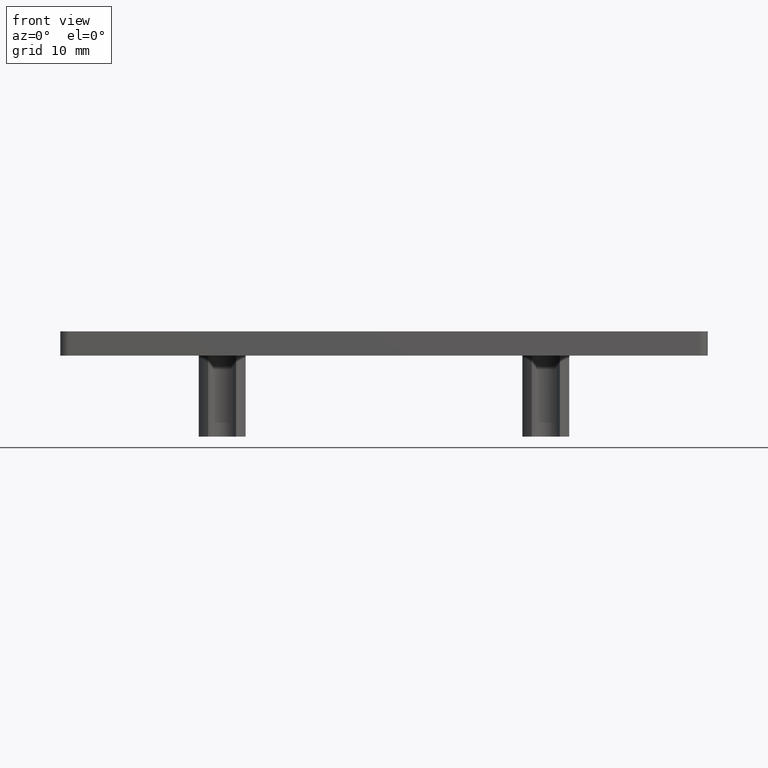
[diagram: clean part render]
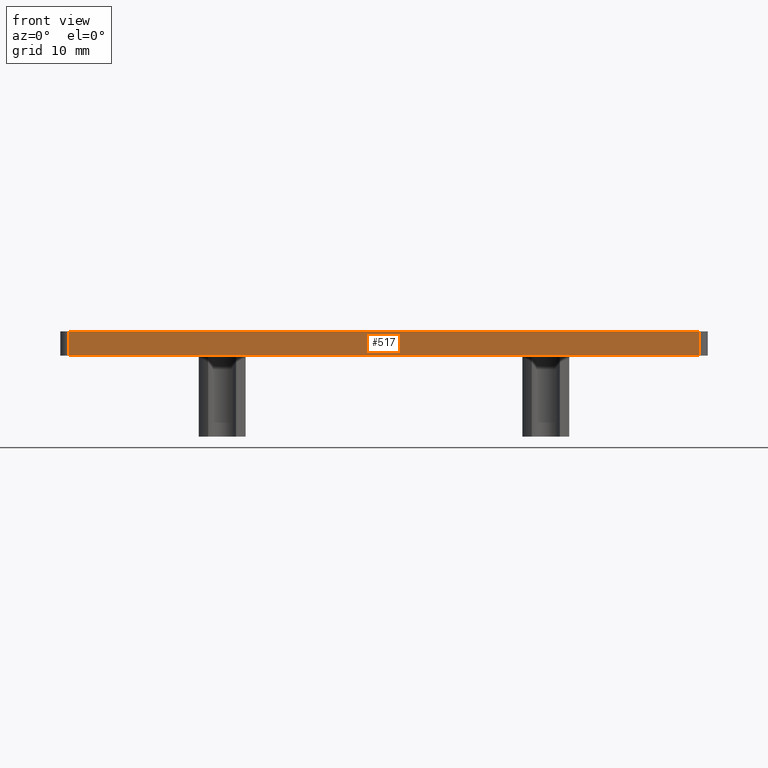
[diagram: same view with one face highlighted and labeled with its STEP entity id]
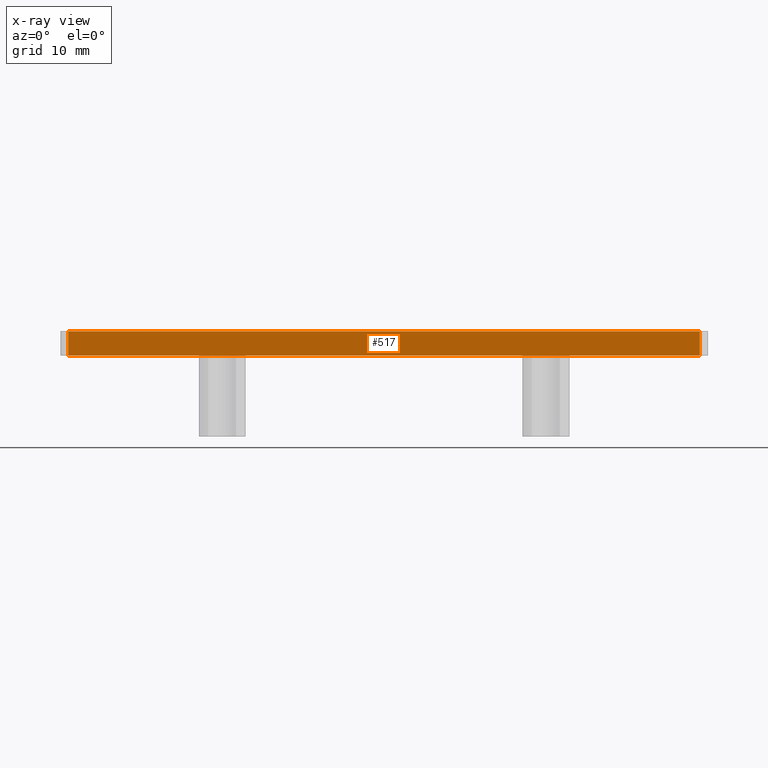
[diagram: x-ray of the same camera — body ghosted, the highlighted face saturated]
A machine part, front view. The second image highlights one B-rep face of the part: STEP entity #517.
The next image is the same camera in x-ray: the body ghosted, the highlighted face saturated — about 0% of this face is hidden behind the body in this view.
In plain terms, the highlighted planar face has unit normal (0, 1, 0).
Its self-contained STEP definition (entity closure, byte-faithful):
#478=CARTESIAN_POINT('',(-42.900000000000020,0.0,-0.150000000000000));
#479=DIRECTION('',(0.0,1.0,0.0));
#480=DIRECTION('',(0.0,0.0,1.0));
#481=AXIS2_PLACEMENT_3D('',#478,#479,#480);
#482=PLANE('',#481);
#483=CARTESIAN_POINT('',(39.000000000000014,0.0,0.0));
#484=VERTEX_POINT('',#483);
#485=CARTESIAN_POINT('',(-39.000000000000014,0.0,0.0));
#486=VERTEX_POINT('',#485);
#487=CARTESIAN_POINT('',(39.000000000000014,0.0,0.0));
#488=DIRECTION('',(-1.0,0.0,0.0));
#489=VECTOR('',#488,78.000000000000028);
#490=LINE('',#487,#489);
#491=EDGE_CURVE('',#484,#486,#490,.T.);
#492=ORIENTED_EDGE('',*,*,#491,.F.);
#493=CARTESIAN_POINT('',(39.000000000000014,0.0,3.000000000000000));
#494=VERTEX_POINT('',#493);
#495=CARTESIAN_POINT('',(39.000000000000014,0.0,0.0));
#496=DIRECTION('',(0.0,0.0,1.0));
#497=VECTOR('',#496,3.0);
#498=LINE('',#495,#497);
#499=EDGE_CURVE('',#484,#494,#498,.T.);
#500=ORIENTED_EDGE('',*,*,#499,.T.);
#501=CARTESIAN_POINT('',(-39.000000000000014,0.0,3.000000000000000));
#502=VERTEX_POINT('',#501);
#503=CARTESIAN_POINT('',(39.000000000000014,0.0,3.000000000000000));
#504=DIRECTION('',(-1.0,0.0,0.0));
#505=VECTOR('',#504,78.000000000000028);
#506=LINE('',#503,#505);
#507=EDGE_CURVE('',#494,#502,#506,.T.);
#508=ORIENTED_EDGE('',*,*,#507,.T.);
#509=CARTESIAN_POINT('',(-39.000000000000014,0.0,3.000000000000000));
#510=DIRECTION('',(0.0,0.0,-1.0));
#511=VECTOR('',#510,3.0);
#512=LINE('',#509,#511);
#513=EDGE_CURVE('',#502,#486,#512,.T.);
#514=ORIENTED_EDGE('',*,*,#513,.T.);
#515=EDGE_LOOP('',(#492,#500,#508,#514));
#516=FACE_OUTER_BOUND('',#515,.T.);
#517=ADVANCED_FACE('',(#516),#482,.F.);